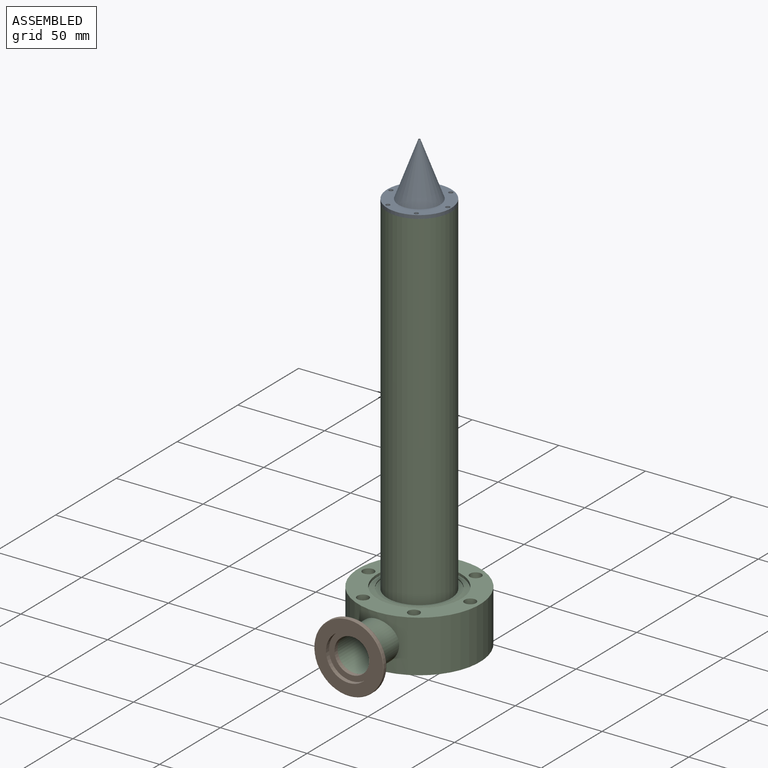
[diagram: assembled view]
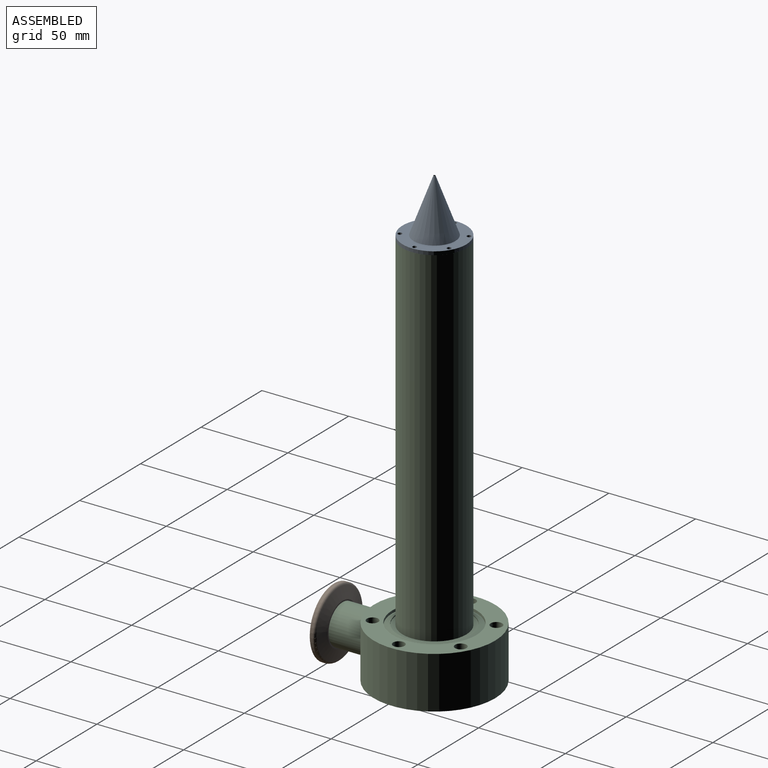
[diagram: assembled view, second angle]
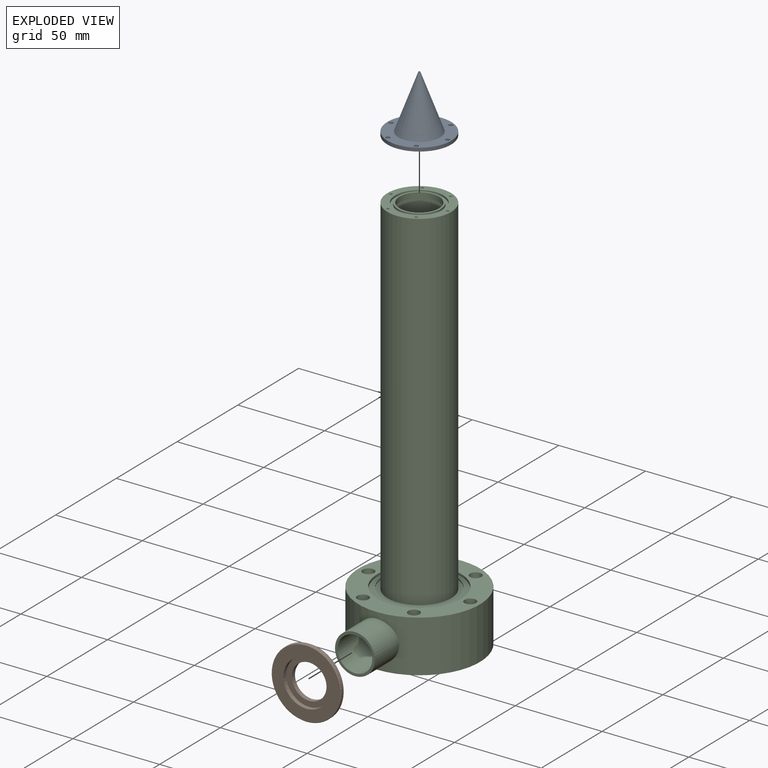
[diagram: exploded view]
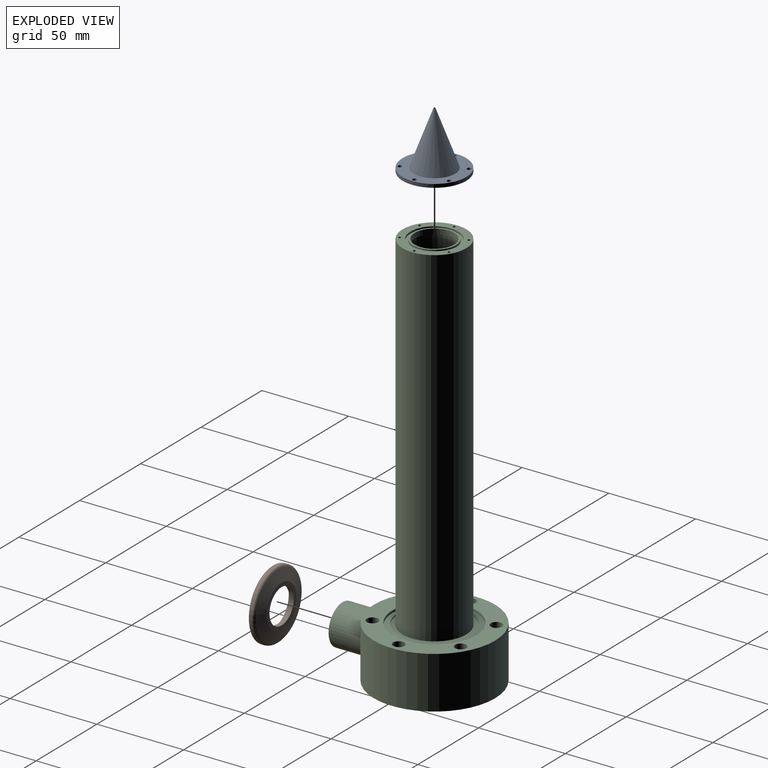
[diagram: exploded view, second angle]
ASSEMBLY  parts=3 mates=4
PART A: 11 faces, bbox 36.8x36.8x33 mm
  f0: cylinder r=1.2mm len=2.4mm, axis (0,0,-1), area 15.1mm2, adj f7,f9
  f1: cylinder r=1.2mm len=2.4mm, axis (0,0,-1), area 15.1mm2, adj f7,f9
  f2: cylinder r=1.2mm len=2.4mm, axis (0,0,-1), area 15.1mm2, adj f7,f9
  f3: cylinder r=1.2mm len=2.4mm, axis (0,0,-1), area 15.1mm2, adj f7,f9
  f4: cylinder r=1.2mm len=2.4mm, axis (0,0,-1), area 15.1mm2, adj f7,f9
  f5: cone r=0.5mm half-angle=20.4deg, axis (0,0,1), area 1298.4mm2, adj f6,f9
  f6: cone r=11.4mm half-angle=18.3deg, axis (0,0,1), area 1299.3mm2, adj f5,f7
  f7: plane 36.8x36.8mm, normal (0,0,1), area 628.2mm2, adj f0,f1,f2,f3,f4,f6,f8,f10
  f8: cylinder r=18.4mm len=36.8mm, axis (0,0,1), area 231.2mm2, adj f7,f9
  f9: plane 36.8x36.8mm, normal (0,0,-1), area 584.1mm2, adj f0,f1,f2,f3,f4,f5,f8,f10
  f10: cylinder r=1.2mm len=2.4mm, axis (0,0,-1), area 15.1mm2, adj f7,f9
PART B: 9 faces, bbox 43.3x5.1x43.3 mm
  f0: cylinder r=10mm len=20mm, axis (0,1,0), area 162.1mm2, adj f6,f8
  f1: cone r=20mm half-angle=45deg, axis (0,1,0), area 44.2mm2, adj f4,f7
  f2: torus R=18.5mm, axis (0,-1,0), area 241.9mm2, adj f3,f4
  f3: cone r=12.24mm half-angle=75deg, axis (0,-1,0), area 673.3mm2, adj f2,f8
  f4: cylinder r=20mm len=40mm, axis (0,1,0), area 200.9mm2, adj f1,f2
  f5: cylinder r=13.15mm len=26.3mm, axis (0,1,0), area 206.6mm2, adj f6,f7
  f6: plane 26.3x26.3mm, normal (0,-1,0), area 229.1mm2, adj f0,f5
  f7: plane 39.5x39.5mm, normal (0,-1,0), area 682.2mm2, adj f1,f5
  f8: plane 24.47x24.47mm, normal (0,1,0), area 156.3mm2, adj f0,f3
PART C: 43 faces, bbox 70x230x88 mm
  f0: cone r=0mm half-angle=59deg, axis (0,-1,0), area 2.3mm2, adj f1
  f1: cylinder r=0.8mm len=2mm, axis (0,-1,0), area 10.1mm2, adj f0,f33
  f2: cone r=0mm half-angle=59deg, axis (0,-1,0), area 2.3mm2, adj f3
  f3: cylinder r=0.8mm len=2mm, axis (0,-1,0), area 10.1mm2, adj f2,f33
  f4: cone r=0mm half-angle=59deg, axis (0,-1,0), area 2.3mm2, adj f5
  f5: cylinder r=0.8mm len=2mm, axis (0,-1,0), area 10.1mm2, adj f4,f33
  f6: cone r=0mm half-angle=59deg, axis (0,-1,0), area 2.3mm2, adj f7
  f7: cylinder r=0.8mm len=2mm, axis (0,-1,0), area 10.1mm2, adj f6,f33
  f8: cone r=0mm half-angle=59deg, axis (0,-1,0), area 2.3mm2, adj f9
  f9: cylinder r=0.8mm len=2mm, axis (0,-1,0), area 10.1mm2, adj f8,f33
  f10: cylinder r=35mm len=70mm, axis (0,1,0), area 6176.1mm2, adj f17,f18,f23
  f11: cylinder r=16.9mm len=225.8mm, axis (0,1,0), area 23647.1mm2, adj f20,f25,f41
  f12: cylinder r=3.3mm len=30mm, axis (0,1,0), area 617.2mm2, adj f17,f18,f22
  f13: cylinder r=3.3mm len=30mm, axis (0,1,0), area 617.2mm2, adj f17,f18,f21
  f14: cylinder r=3.3mm len=30mm, axis (0,1,0), area 622mm2, adj f17,f18
  f15: cylinder r=3.3mm len=30mm, axis (0,1,0), area 622mm2, adj f17,f18
  f16: cylinder r=3.3mm len=30mm, axis (0,1,0), area 622mm2, adj f17,f18
  f17: plane 70x70mm, normal (0,-1,0), area 1807.1mm2, adj f10,f12,f13,f14,f15,f16,f19,f30
  f18: plane 70x70mm, normal (0,1,0), area 1807.1mm2, adj f10,f12,f13,f14,f15,f16,f19,f26
  f19: cylinder r=3.3mm len=30mm, axis (0,1,0), area 622mm2, adj f17,f18
  f20: cylinder r=10mm len=39.38mm, axis (0,0,-1), area 2368.6mm2, adj f11,f24
  f21: cylinder r=11.5mm len=3.38mm, axis (0,0,1), area 4.8mm2, adj f13
  f22: cylinder r=11.5mm len=3.38mm, axis (0,0,1), area 4.8mm2, adj f12
  f23: cylinder r=11.5mm len=23mm, axis (0,0,1), area 1370.3mm2, adj f10,f24
  f24: plane 23x23mm, normal (0,0,-1), area 101.3mm2, adj f20,f23
  f25: plane 41.9x41.9mm, normal (0,1,0), area 481.6mm2, adj f11,f28
  f26: cylinder r=24.17mm len=48.35mm, axis (0,1,0), area 226mm2, adj f18,f27
  f27: cone r=24.17mm half-angle=74.6deg, axis (0,-1,0), area 474.2mm2, adj f26,f28
  f28: cylinder r=20.95mm len=41.9mm, axis (0,1,0), area 79mm2, adj f25,f27
  f29: plane 41.9x41.9mm, normal (0,-1,0), area 315.2mm2, adj f31,f34
  f30: cylinder r=24.17mm len=48.35mm, axis (0,-1,0), area 226mm2, adj f17,f32
  f31: cylinder r=20.95mm len=41.9mm, axis (0,-1,0), area 79mm2, adj f29,f32
  f32: cone r=24.17mm half-angle=74.6deg, axis (0,1,0), area 474.2mm2, adj f30,f31
  f33: plane 36.8x36.8mm, normal (0,-1,0), area 444.6mm2, adj f1,f3,f5,f7,f9,f34,f36,f38
  f34: cylinder r=18.4mm len=201.2mm, axis (0,1,0), area 23260.9mm2, adj f29,f33
  f35: cone r=0mm half-angle=59deg, axis (0,-1,0), area 2.3mm2, adj f36
  f36: cylinder r=0.8mm len=2mm, axis (0,-1,0), area 10.1mm2, adj f33,f35
  f37: cylinder r=12.4mm len=24.8mm, axis (0,-1,0), area 87.7mm2, adj f39,f40
  f38: cylinder r=13.9mm len=27.8mm, axis (0,-1,0), area 98.3mm2, adj f33,f39
  f39: plane 27.8x27.8mm, normal (0,-1,0), area 123.9mm2, adj f37,f38
  f40: plane 24.8x24.8mm, normal (0,-1,0), area 74.8mm2, adj f37,f42
  f41: plane 33.8x33.8mm, normal (0,1,0), area 489mm2, adj f11,f42
  f42: cylinder r=11.4mm len=22.8mm, axis (0,-1,0), area 214.9mm2, adj f40,f41
PLACE A rot(axis=(0.71,0.71,0),180deg) t=(-165.11,14,182.06)mm fixed
PLACE B t=(-165.11,-44.08,-65.94)mm
PLACE C rot(axis=(-1,0,0),90deg) t=(-165.11,14,-80.94)mm
MATE planar B.f0 <-> C.f20  axis (0,1,0) through (-165.11,-39,-65.94)mm
MATE planar C.f42 <-> A.f5  axis (0,0,1) through (-165.11,14,149.06)mm
MATE planar A.f5 <-> C.f42  axis (0,0,-1) through (-165.11,14,149.06)mm
MATE planar C.f20 <-> B.f0  axis (0,-1,0) through (-165.11,-39,-65.94)mm
